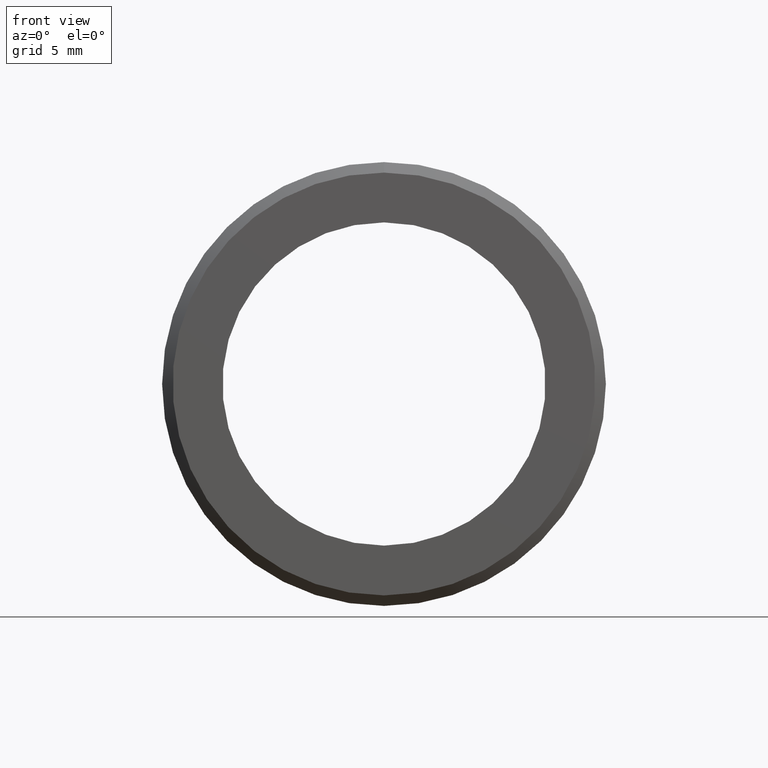
[diagram: clean part render]
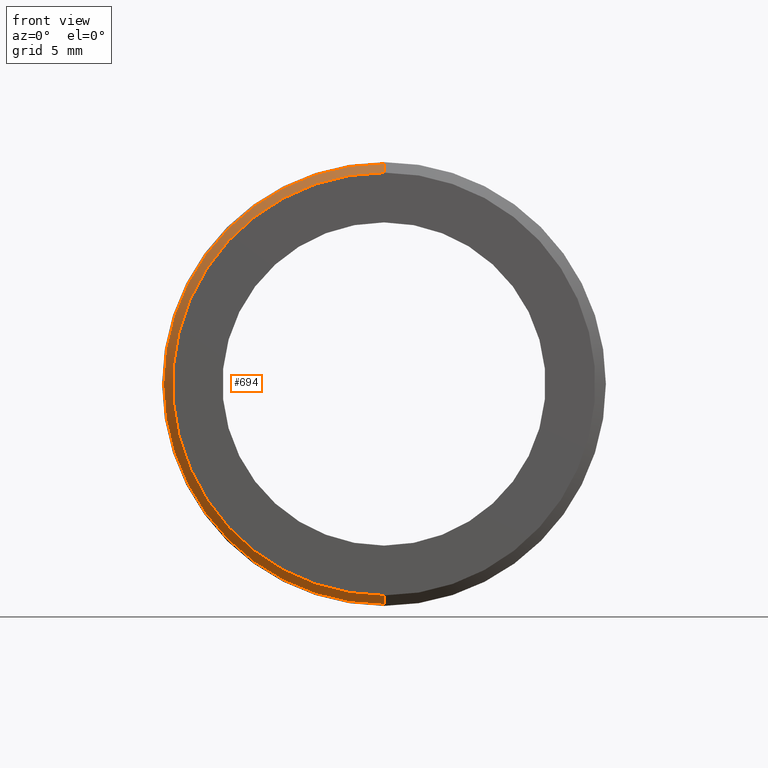
[diagram: same view with one face highlighted and labeled with its STEP entity id]
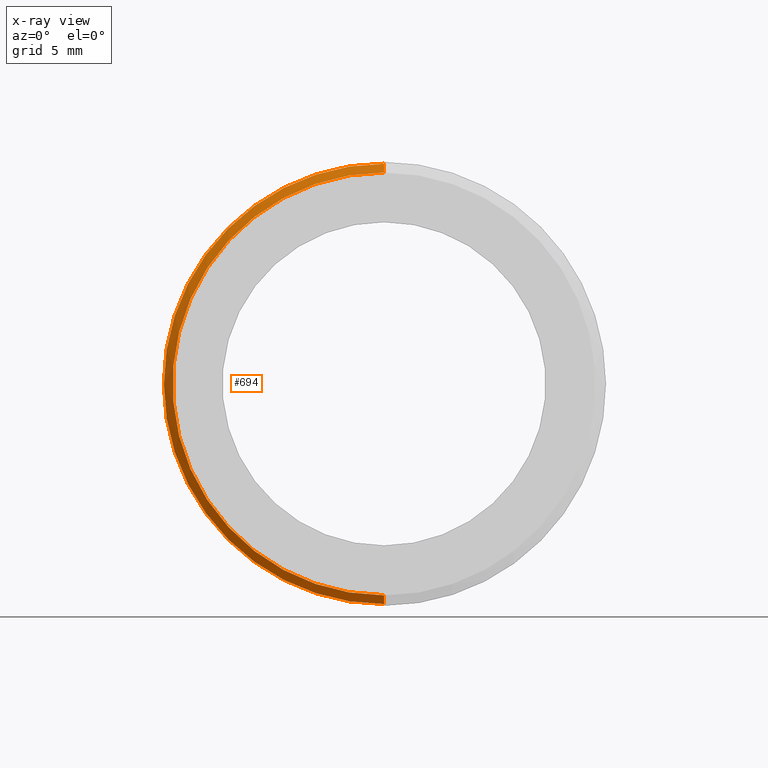
[diagram: x-ray of the same camera — body ghosted, the highlighted face saturated]
A machine part, front view. The second image highlights one B-rep face of the part: STEP entity #694.
The next image is the same camera in x-ray: the body ghosted, the highlighted face saturated — about 0% of this face is hidden behind the body in this view.
In plain terms, the highlighted conical surface has half-angle 45 deg.
Its self-contained STEP definition (entity closure, byte-faithful):
#7 = AXIS2_PLACEMENT_3D ( 'NONE', #103, #585, #84 ) ;
#76 = VECTOR ( 'NONE', #674, 1000.000000000000000 ) ;
#84 = DIRECTION ( 'NONE',  ( 0.0000000000000000000, 0.0000000000000000000, 1.000000000000000000 ) ) ;
#87 = CARTESIAN_POINT ( 'NONE',  ( 1.543054966925665100E-015, 0.5000000000000073300, 12.60000000000000000 ) ) ;
#98 = CARTESIAN_POINT ( 'NONE',  ( 0.0000000000000000000, 0.5000000000000073300, 0.0000000000000000000 ) ) ;
#99 = VERTEX_POINT ( 'NONE', #87 ) ;
#103 = CARTESIAN_POINT ( 'NONE',  ( 0.0000000000000000000, 0.0000000000000000000, 0.0000000000000000000 ) ) ;
#116 = DIRECTION ( 'NONE',  ( 0.0000000000000000000, 0.0000000000000000000, -1.000000000000000000 ) ) ;
#131 = DIRECTION ( 'NONE',  ( 0.0000000000000000000, 0.0000000000000000000, -1.000000000000000000 ) ) ;
#214 = VERTEX_POINT ( 'NONE', #534 ) ;
#249 = EDGE_CURVE ( 'NONE', #480, #359, #472, .T. ) ;
#298 = CIRCLE ( 'NONE', #329, 12.09999999999999400 ) ;
#321 = AXIS2_PLACEMENT_3D ( 'NONE', #98, #405, #116 ) ;
#329 = AXIS2_PLACEMENT_3D ( 'NONE', #831, #709, #131 ) ;
#342 = CARTESIAN_POINT ( 'NONE',  ( 0.0000000000000000000, 0.5000000000000073300, -12.60000000000000000 ) ) ;
#359 = VERTEX_POINT ( 'NONE', #342 ) ;
#371 = EDGE_LOOP ( 'NONE', ( #842, #596, #749, #419 ) ) ;
#405 = DIRECTION ( 'NONE',  ( 0.0000000000000000000, 1.000000000000000000, 0.0000000000000000000 ) ) ;
#419 = ORIENTED_EDGE ( 'NONE', *, *, #868, .F. ) ;
#436 = CARTESIAN_POINT ( 'NONE',  ( 1.481822626968296700E-015, 0.0000000000000000000, -12.09999999999999400 ) ) ;
#459 = FACE_OUTER_BOUND ( 'NONE', #371, .T. ) ;
#463 = EDGE_CURVE ( 'NONE', #214, #480, #298, .T. ) ;
#472 = LINE ( 'NONE', #436, #76 ) ;
#480 = VERTEX_POINT ( 'NONE', #525 ) ;
#525 = CARTESIAN_POINT ( 'NONE',  ( 1.512438796946980900E-015, 0.0000000000000000000, -12.09999999999999400 ) ) ;
#534 = CARTESIAN_POINT ( 'NONE',  ( 0.0000000000000000000, 0.0000000000000000000, 12.09999999999999400 ) ) ;
#548 = CONICAL_SURFACE ( 'NONE', #7, 12.09999999999999400, 0.7853981633974466100 ) ;
#575 = LINE ( 'NONE', #840, #663 ) ;
#585 = DIRECTION ( 'NONE',  ( 0.0000000000000000000, 1.000000000000000000, 0.0000000000000000000 ) ) ;
#596 = ORIENTED_EDGE ( 'NONE', *, *, #463, .F. ) ;
#663 = VECTOR ( 'NONE', #773, 1000.000000000000000 ) ;
#674 = DIRECTION ( 'NONE',  ( 8.659560562354918100E-017, 0.7071067811865487900, -0.7071067811865463500 ) ) ;
#694 = ADVANCED_FACE ( 'NONE', ( #459 ), #548, .T. ) ;
#709 = DIRECTION ( 'NONE',  ( -0.0000000000000000000, -1.000000000000000000, -0.0000000000000000000 ) ) ;
#737 = EDGE_CURVE ( 'NONE', #214, #99, #575, .T. ) ;
#749 = ORIENTED_EDGE ( 'NONE', *, *, #737, .T. ) ;
#753 = CIRCLE ( 'NONE', #321, 12.60000000000000000 ) ;
#773 = DIRECTION ( 'NONE',  ( 0.0000000000000000000, 0.7071067811865487900, 0.7071067811865463500 ) ) ;
#831 = CARTESIAN_POINT ( 'NONE',  ( 0.0000000000000000000, 0.0000000000000000000, 0.0000000000000000000 ) ) ;
#840 = CARTESIAN_POINT ( 'NONE',  ( 0.0000000000000000000, 0.0000000000000000000, 12.09999999999999400 ) ) ;
#842 = ORIENTED_EDGE ( 'NONE', *, *, #249, .F. ) ;
#868 = EDGE_CURVE ( 'NONE', #359, #99, #753, .T. ) ;